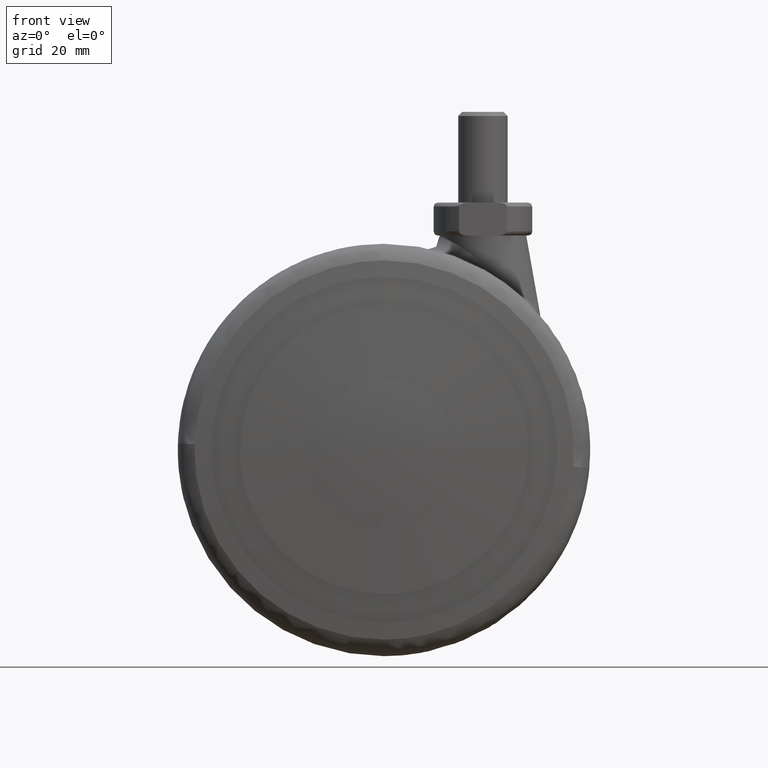
[diagram: clean part render]
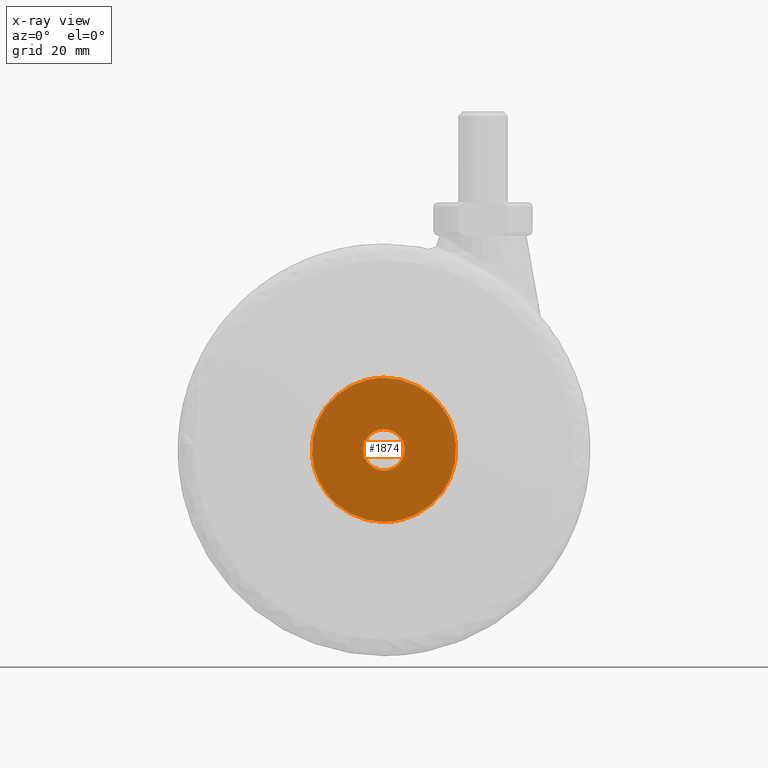
[diagram: x-ray — body ghosted, one internal face saturated and labeled with its STEP entity id]
A machine part, front view, then the same camera in x-ray: the body is ghosted and one INTERNAL B-rep face — a face not visible from any outside direction — is saturated and labeled: STEP entity #1874.
In plain terms, the highlighted face is a freeform B-spline surface patch.
Its self-contained STEP definition (entity closure, byte-faithful):
#96=CARTESIAN_POINT('',(-4.999809615316014,28.500000000000000,-0.043632678046651));
#97=VERTEX_POINT('',#96);
#103=CARTESIAN_POINT('',(0.0,28.500000000000000,5.000000000000011));
#104=VERTEX_POINT('',#103);
#105=CARTESIAN_POINT('',(-4.999809615316014,28.499999999999996,-0.043632678046651));
#106=CARTESIAN_POINT('',(-4.999999999999999,28.500000000000000,-0.021816754658321));
#107=CARTESIAN_POINT('',(-5.0,28.500000000000000,1.047038E-014));
#108=CARTESIAN_POINT('',(-5.000000000000001,28.500000000000007,5.000000000000010));
#109=CARTESIAN_POINT('',(0.0,28.500000000000000,5.000000000000011));
#117=(BOUNDED_CURVE()B_SPLINE_CURVE(2,(#105,#106,#107,#108,#109),.UNSPECIFIED.,.F.,.U.)B_SPLINE_CURVE_WITH_KNOTS((3,2,3),(0.248460105625922,0.250000000000000,0.500000000000000),.UNSPECIFIED.)CURVE()GEOMETRIC_REPRESENTATION_ITEM()RATIONAL_B_SPLINE_CURVE((0.996414028009939,0.998195901520575,1.0,0.707106781186548,1.0))REPRESENTATION_ITEM(''));
#118=EDGE_CURVE('',#97,#104,#117,.T.);
#120=CARTESIAN_POINT('',(4.961331069094030,28.500000000000000,0.620640010668252));
#121=VERTEX_POINT('',#120);
#122=CARTESIAN_POINT('',(0.0,28.500000000000000,5.000000000000011));
#123=CARTESIAN_POINT('',(4.413493000268628,28.500000000000004,5.000000000000011));
#124=CARTESIAN_POINT('',(4.961331069094030,28.500000000000000,0.620640010668252));
#132=(BOUNDED_CURVE()B_SPLINE_CURVE(2,(#122,#123,#124),.UNSPECIFIED.,.F.,.U.)B_SPLINE_CURVE_WITH_KNOTS((3,3),(0.500000000000000,0.728526071011004),.UNSPECIFIED.)CURVE()GEOMETRIC_REPRESENTATION_ITEM()RATIONAL_B_SPLINE_CURVE((1.0,0.732265053915182,0.954005430239215))REPRESENTATION_ITEM(''));
#133=EDGE_CURVE('',#104,#121,#132,.T.);
#183=CARTESIAN_POINT('',(0.0,28.500000000000000,-4.999999999999989));
#184=VERTEX_POINT('',#183);
#185=CARTESIAN_POINT('',(4.961331069094030,28.499999999999993,0.620640010668252));
#186=CARTESIAN_POINT('',(5.0,28.499999999999993,0.311524637939727));
#187=CARTESIAN_POINT('',(5.0,28.500000000000000,1.047038E-014));
#188=CARTESIAN_POINT('',(5.000000000000001,28.500000000000007,-4.999999999999989));
#189=CARTESIAN_POINT('',(0.0,28.500000000000000,-4.999999999999989));
#197=(BOUNDED_CURVE()B_SPLINE_CURVE(2,(#185,#186,#187,#188,#189),.UNSPECIFIED.,.F.,.U.)B_SPLINE_CURVE_WITH_KNOTS((3,2,3),(0.728526071011005,0.750000000000000,1.0),.UNSPECIFIED.)CURVE()GEOMETRIC_REPRESENTATION_ITEM()RATIONAL_B_SPLINE_CURVE((0.954005430239217,0.974841727271367,1.0,0.707106781186548,1.0))REPRESENTATION_ITEM(''));
#198=EDGE_CURVE('',#121,#184,#197,.T.);
#200=CARTESIAN_POINT('',(0.0,28.500000000000000,-4.999999999999989));
#201=CARTESIAN_POINT('',(-4.956556051874862,28.499999999999996,-4.999999999999989));
#202=CARTESIAN_POINT('',(-4.999809615316016,28.500000000000004,-0.043632678046651));
#210=(BOUNDED_CURVE()B_SPLINE_CURVE(2,(#200,#201,#202),.UNSPECIFIED.,.F.,.U.)B_SPLINE_CURVE_WITH_KNOTS((3,3),(0.0,0.248460105625922),.UNSPECIFIED.)CURVE()GEOMETRIC_REPRESENTATION_ITEM()RATIONAL_B_SPLINE_CURVE((1.0,0.708910879665973,0.996414028009939))REPRESENTATION_ITEM(''));
#211=EDGE_CURVE('',#184,#97,#210,.T.);
#265=CARTESIAN_POINT('',(17.446048873573361,28.500000000000000,1.373033823822406));
#266=VERTEX_POINT('',#265);
#272=CARTESIAN_POINT('',(0.0,28.500000000000000,17.499994414643108));
#273=VERTEX_POINT('',#272);
#274=CARTESIAN_POINT('',(0.0,28.500000000000000,17.499994414643108));
#275=CARTESIAN_POINT('',(16.176828991547218,28.499999999999996,17.499994457983846));
#276=CARTESIAN_POINT('',(17.446048873573364,28.500000000000000,1.373033823822406));
#284=(BOUNDED_CURVE()B_SPLINE_CURVE(2,(#274,#275,#276),.UNSPECIFIED.,.F.,.U.)B_SPLINE_CURVE_WITH_KNOTS((3,3),(0.0,0.236331300631532),.UNSPECIFIED.)CURVE()GEOMETRIC_REPRESENTATION_ITEM()RATIONAL_B_SPLINE_CURVE((1.0,0.723120658606644,0.969723356169238))REPRESENTATION_ITEM(''));
#285=EDGE_CURVE('',#273,#266,#284,.T.);
#287=CARTESIAN_POINT('',(-17.446048873573361,28.500000000000000,-1.373033823822404));
#288=VERTEX_POINT('',#287);
#289=CARTESIAN_POINT('',(-17.446048873573361,28.500000000000004,-1.373033823822405));
#290=CARTESIAN_POINT('',(-17.499995496034760,28.500000000000004,-0.687576738355448));
#291=CARTESIAN_POINT('',(-17.499995474397839,28.500000000000000,-0.000000083404495));
#292=CARTESIAN_POINT('',(-17.499994923701532,28.499999999999996,17.499994374579348));
#293=CARTESIAN_POINT('',(0.0,28.500000000000000,17.499994414643108));
#301=(BOUNDED_CURVE()B_SPLINE_CURVE(2,(#289,#290,#291,#292,#293),.UNSPECIFIED.,.F.,.U.)B_SPLINE_CURVE_WITH_KNOTS((3,2,3),(0.736331300631532,0.750000000000000,1.0),.UNSPECIFIED.)CURVE()GEOMETRIC_REPRESENTATION_ITEM()RATIONAL_B_SPLINE_CURVE((0.969723356169238,0.983986122579904,1.0,0.707106781186547,1.0))REPRESENTATION_ITEM(''));
#302=EDGE_CURVE('',#288,#273,#301,.T.);
#378=CARTESIAN_POINT('',(0.0,28.500000000000000,-17.499994414643091));
#379=VERTEX_POINT('',#378);
#380=CARTESIAN_POINT('',(0.0,28.500000000000000,-17.499994414643091));
#381=CARTESIAN_POINT('',(-16.176828991547200,28.500000000000004,-17.499994457983828));
#382=CARTESIAN_POINT('',(-17.446048873573361,28.500000000000004,-1.373033823822405));
#390=(BOUNDED_CURVE()B_SPLINE_CURVE(2,(#380,#381,#382),.UNSPECIFIED.,.F.,.U.)B_SPLINE_CURVE_WITH_KNOTS((3,3),(0.500000000000000,0.736331300631532),.UNSPECIFIED.)CURVE()GEOMETRIC_REPRESENTATION_ITEM()RATIONAL_B_SPLINE_CURVE((1.0,0.723120658606644,0.969723356169238))REPRESENTATION_ITEM(''));
#391=EDGE_CURVE('',#379,#288,#390,.T.);
#393=CARTESIAN_POINT('',(17.446048873573364,28.500000000000000,1.373033823822406));
#394=CARTESIAN_POINT('',(17.499995496034764,28.499999999999996,0.687576738355462));
#395=CARTESIAN_POINT('',(17.499995474397839,28.500000000000000,0.000000083404519));
#396=CARTESIAN_POINT('',(17.499994923701532,28.499999999999996,-17.499994374579320));
#397=CARTESIAN_POINT('',(0.0,28.500000000000000,-17.499994414643091));
#405=(BOUNDED_CURVE()B_SPLINE_CURVE(2,(#393,#394,#395,#396,#397),.UNSPECIFIED.,.F.,.U.)B_SPLINE_CURVE_WITH_KNOTS((3,2,3),(0.236331300631532,0.250000000000000,0.500000000000000),.UNSPECIFIED.)CURVE()GEOMETRIC_REPRESENTATION_ITEM()RATIONAL_B_SPLINE_CURVE((0.969723356169238,0.983986122579904,1.0,0.707106781186547,1.0))REPRESENTATION_ITEM(''));
#406=EDGE_CURVE('',#266,#379,#405,.T.);
#1857=CARTESIAN_POINT('',(19.242904784574041,28.500000000000000,19.248243788829189));
#1858=CARTESIAN_POINT('',(19.242904784574041,28.500000000000000,-19.248244727602021));
#1859=CARTESIAN_POINT('',(-19.242905723346912,28.500000000000000,19.248243788829189));
#1860=CARTESIAN_POINT('',(-19.242905723346912,28.500000000000000,-19.248244727602021));
#1861=B_SPLINE_SURFACE_WITH_KNOTS('',1,1,((#1857,#1859),(#1858,#1860)),.UNSPECIFIED.,.F.,.F.,.U.,(2,2),(2,2),(0.0,38.496488516431199),(0.0,38.485810507920952),.UNSPECIFIED.);
#1862=ORIENTED_EDGE('',*,*,#285,.T.);
#1863=ORIENTED_EDGE('',*,*,#406,.T.);
#1864=ORIENTED_EDGE('',*,*,#391,.T.);
#1865=ORIENTED_EDGE('',*,*,#302,.T.);
#1866=EDGE_LOOP('',(#1862,#1863,#1864,#1865));
#1867=FACE_OUTER_BOUND('',#1866,.T.);
#1868=ORIENTED_EDGE('',*,*,#211,.F.);
#1869=ORIENTED_EDGE('',*,*,#198,.F.);
#1870=ORIENTED_EDGE('',*,*,#133,.F.);
#1871=ORIENTED_EDGE('',*,*,#118,.F.);
#1872=EDGE_LOOP('',(#1868,#1869,#1870,#1871));
#1873=FACE_BOUND('',#1872,.T.);
#1874=ADVANCED_FACE('',(#1867,#1873),#1861,.T.);